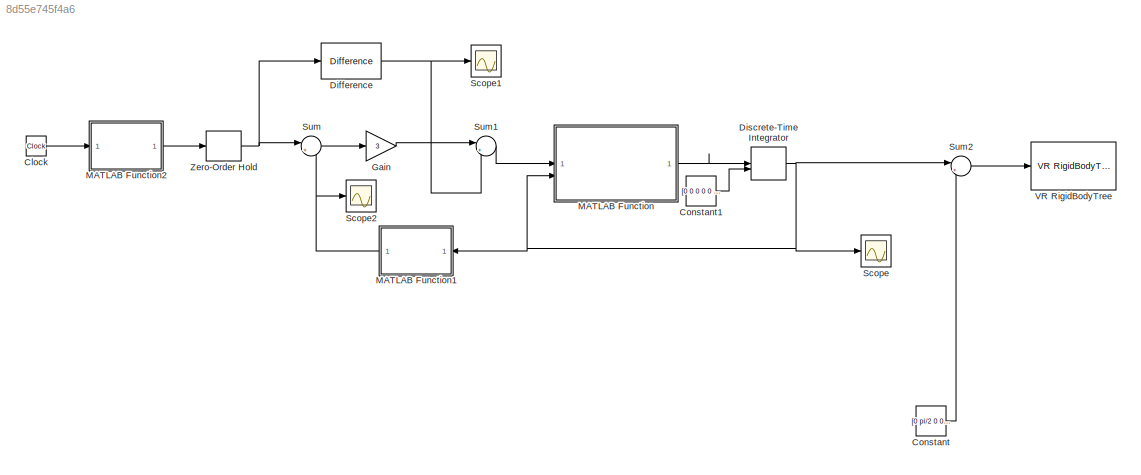
MODEL slx_8d55e745f4a6
KIND model
CONFIG AbsTol = auto
CONFIG EnableMultiTasking = off
CONFIG FixedStep = auto
CONFIG MaxStep = auto
CONFIG MinStep = auto
CONFIG RelTol = 1e-3
CONFIG SampleTimeConstraint = Unconstrained
CONFIG SolverName = VariableStepAuto
CONFIG StartTime = 0.0
CONFIG StopTime = 30.0
BLOCK [Clock] Clock
  Decimation = 1
BLOCK [Constant] Constant
  Value = [0 pi/2 0 0 0 0]'
BLOCK [Constant] Constant1
  Value = [0 0 0 0 0 0]'
BLOCK [Reference] Difference  REF=simulink/Discrete/Difference
  SourceBlock = simulink/Discrete/Difference
  SourceType = Difference
BLOCK [DiscreteIntegrator] Discrete-Time Integrator
  ICPrevOutput = DiscIntNeverNeededParam
  ICPrevScaledInput = DiscIntNeverNeededParam
  InitialConditionSetting = Auto
  InitialConditionSource = external
  OutMin = [2]
  SampleTime = -1
BLOCK [Gain] Gain
  Gain = 3
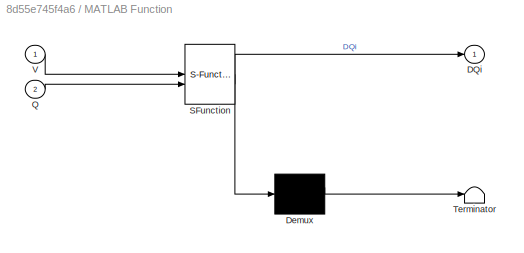
BLOCK [SubSystem] MATLAB Function
  ErrorFcn = Stateflow.Translate.translate
  PermitHierarchicalResolution = ExplicitOnly
  SFBlockType = MATLAB Function
  TreatAsAtomicUnit = on
BLOCK [Demux] MATLAB Function/ Demux 
  Outputs = 1
BLOCK [S-Function] MATLAB Function/ SFunction 
  EnableBusSupport = on
  FunctionName = sf_sfun
  PortCounts = [2 2]
  SFcnIsStateOwnerBlock = off
  SFunctionDeploymentMode = off
  Tag = Stateflow S-Function 2
BLOCK [Terminator] MATLAB Function/ Terminator 
BLOCK [Outport] MATLAB Function/DQi
BLOCK [Inport] MATLAB Function/Q
  Port = 2
BLOCK [Inport] MATLAB Function/V
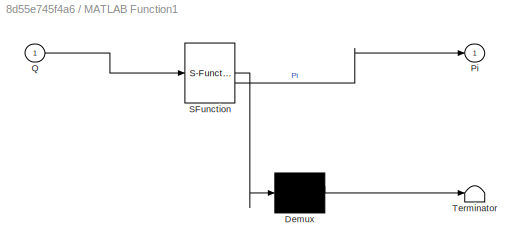
BLOCK [SubSystem] MATLAB Function1
  ErrorFcn = Stateflow.Translate.translate
  PermitHierarchicalResolution = ExplicitOnly
  SFBlockType = MATLAB Function
  TreatAsAtomicUnit = on
BLOCK [Demux] MATLAB Function1/ Demux 
  Outputs = 1
BLOCK [S-Function] MATLAB Function1/ SFunction 
  EnableBusSupport = on
  FunctionName = sf_sfun
  PortCounts = [1 2]
  SFcnIsStateOwnerBlock = off
  SFunctionDeploymentMode = off
  Tag = Stateflow S-Function 1
BLOCK [Terminator] MATLAB Function1/ Terminator 
BLOCK [Outport] MATLAB Function1/Pi
BLOCK [Inport] MATLAB Function1/Q
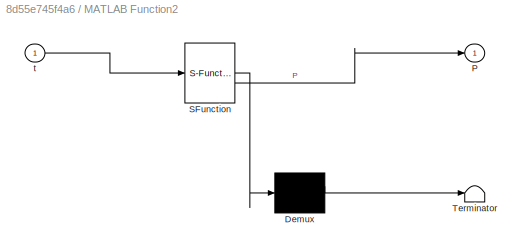
BLOCK [SubSystem] MATLAB Function2
  ErrorFcn = Stateflow.Translate.translate
  PermitHierarchicalResolution = ExplicitOnly
  SFBlockType = MATLAB Function
  TreatAsAtomicUnit = on
BLOCK [Demux] MATLAB Function2/ Demux 
  Outputs = 1
BLOCK [S-Function] MATLAB Function2/ SFunction 
  EnableBusSupport = on
  FunctionName = sf_sfun
  PortCounts = [1 2]
  SFcnIsStateOwnerBlock = off
  SFunctionDeploymentMode = off
  Tag = Stateflow S-Function 3
BLOCK [Terminator] MATLAB Function2/ Terminator 
BLOCK [Outport] MATLAB Function2/P
BLOCK [Inport] MATLAB Function2/t
BLOCK [Scope] Scope
  Floating = off
  NumInputPorts = 1
  ScopeSpecificationString = Simulink.scopes.TimeScopeBlockCfg('CurrentConfiguration', extmgr.ConfigurationSet(extmgr.Configuration('Core','General UI',true),extmgr.Configuration('Core','Source UI',true),extmgr.Configuration('Sources','WiredSimulink',true,'DataLoggingVariableName','ScopeData1'),extmgr.Configuration('Visuals','Time Domain',true,'SerializedDisplays',{struct('MinYLimReal','-0.0118','MaxYLimReal','0.01414','YLabe...<+1649ch>
BLOCK [Scope] Scope1
  Floating = off
  NumInputPorts = 1
  ScopeSpecificationString = Simulink.scopes.TimeScopeBlockCfg('CurrentConfiguration', extmgr.ConfigurationSet(extmgr.Configuration('Core','General UI',true),extmgr.Configuration('Core','Source UI',true),extmgr.Configuration('Sources','WiredSimulink',true,'DataLoggingVariableName','ScopeData2'),extmgr.Configuration('Visuals','Time Domain',true,'SerializedDisplays',{struct('MinYLimReal','-0.00087','MaxYLimReal','0.00173','YLab...<+1490ch>
BLOCK [Scope] Scope2
  Floating = off
  NumInputPorts = 1
  ScopeSpecificationString = Simulink.scopes.TimeScopeBlockCfg('CurrentConfiguration', extmgr.ConfigurationSet(extmgr.Configuration('Core','General UI',true),extmgr.Configuration('Core','Source UI',true),extmgr.Configuration('Sources','WiredSimulink',true),extmgr.Configuration('Visuals','Time Domain',true,'SerializedDisplays',{struct('MinYLimReal','-0.12625','MaxYLimReal','1.13625','YLabelReal','','MinYLimMag','0.00000','MaxY...<+1504ch>
BLOCK [Sum] Sum
  Inputs = |+-
  NameLocation = top
BLOCK [Sum] Sum1
  Inputs = |++
BLOCK [Sum] Sum2
  Inputs = |++
  NameLocation = top
BLOCK [Reference] VR RigidBodyTree  REF=vrlib/VR RigidBodyTree
  SourceBlock = vrlib/VR RigidBodyTree
  SourceType = VR RigidBodyTree
BLOCK [ZeroOrderHold] Zero-Order Hold
  SampleTime = 0.05
LINE Clock:1 -> MATLAB Function2:1
LINE Constant1:1 -> Discrete-Time Integrator:2
LINE Constant:1 -> Sum2:2
NET Difference:1 -> Scope1:1, Sum1:2
NET Discrete-Time Integrator:1 -> MATLAB Function1:1, MATLAB Function:2, Scope:1, Sum2:1
LINE Gain:1 -> Sum1:1
NET MATLAB Function1:1 -> Scope2:1, Sum:2
LINE MATLAB Function2:1 -> Zero-Order Hold:1
LINE MATLAB Function:1 -> Discrete-Time Integrator:1
LINE Sum1:1 -> MATLAB Function:1
LINE Sum2:1 -> VR RigidBodyTree:1
LINE Sum:1 -> Gain:1
NET Zero-Order Hold:1 -> Difference:1, Sum:1
note: NET lines group one-source signal fan-out (src -> all destinations, sorted); 1:1 wires keep LINE
CHART MATLAB Function states=1 transitions=1
  STATE_LABEL 'eML_blk_kernel()'
  STATE_LABEL 'SCRIPT:\nfunction DQi = inverseKinematic(V,Q)\n\nth1 = Q(1);\nth2 = Q(2);\nth3 = Q(3);\nth4 = Q(4);\nth5 = Q(5);\nth6 = Q(6);\n\n% Jacobian evaluated every time in the position Q\n% viene chiamato J ma il jacobiano seguente è in verità il jacobiano di\n% poszione Jp \n% J = [\n% [(9*sin(th5)*(cos(th1)*sin(th4) - cos(th4)*(cos(th3)*cos(th2 + pi/2)*sin(th1) - sin(th1)*sin(th3)*sin(th2 + pi/2))))/100 - (17*cos(th2...<+3608ch>'
CHART MATLAB Function2 states=1 transitions=1
  STATE_LABEL 'eML_blk_kernel()'
  STATE_LABEL "SCRIPT:\nfunction P = trapezioPlanner(t)\n\n% Intervallo di tempo\nti = 0;\ntf = 10;\nt = t - ti;  % Trasformazione del tempo\ntf = tf - ti;\n\n% Punti in spazio cartesiano\nPi = [0.66 0 1.01].';     % Posizione iniziale 3x1 (m) la stessa posizione nel riferimento dalla scena è Pi = [0.374 0.63 0]'.\nPf = [0.66 0 1.01].'; % Posizione finale 3x1 (m) Pf = [0.374 0 0.63].'       \nP_pos = Pi;                % in...<+1319ch>"
CHART MATLAB Function1 states=1 transitions=1
  STATE_LABEL 'eML_blk_kernel()'
  STATE_LABEL 'SCRIPT:\nfunction Pi = posa(Q)\n\nth1 = Q(1);\nth2 = Q(2);\nth3 = Q(3);\nth4 = Q(4);\nth5 = Q(5);\nth6 = Q(6);\n\n% matrix 4x4 evaluated in the position Q\n% matriceUtilizzata T06 calcolata con la terna posizionata sulla pinza al centro del\n%punto di aggancio \n\nT = [\n[  sin(th6)*(cos(th4)*sin(th1) + sin(th4)*(cos(th1)*sin(th3)*sin(th2 + pi/2) - cos(th1)*cos(th3)*cos(th2 + pi/2))) + cos(th6)*(cos(th5)*(sin(th...<+3608ch>'
CHART  states=0 transitions=0
CHART  states=0 transitions=0
CHART  states=0 transitions=0
